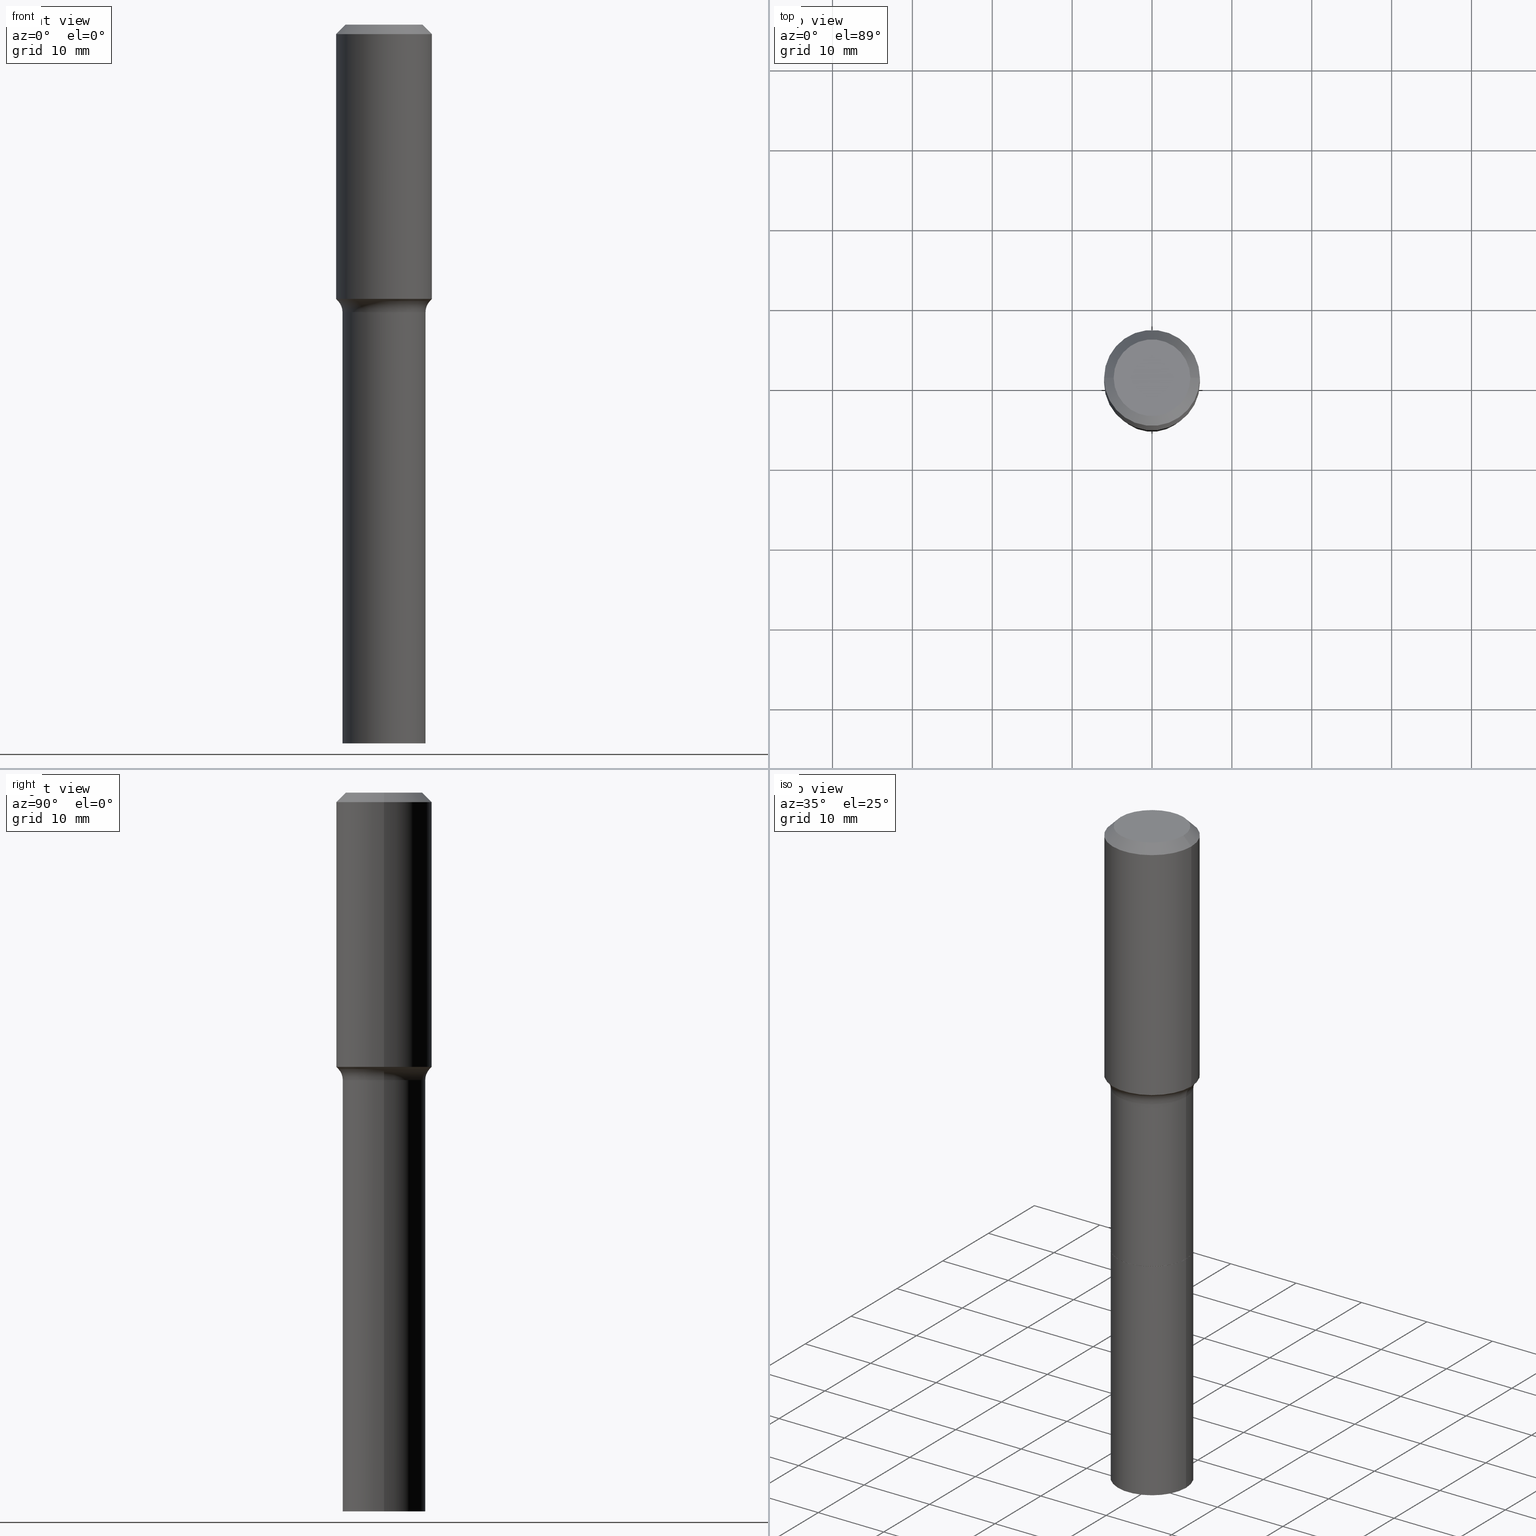
[diagram: canonical four-view strip — front | top / right | iso, engineering-drawing reading convention]
A machine part, canonical four-view strip (front | top / right | iso — engineering-drawing reading convention). The complete STEP part file that produces these views, byte-faithful:
ISO-10303-21;
HEADER;
FILE_DESCRIPTION (( 'STEP AP203' ),
    '1' );
FILE_NAME ('67781.STEP',
    '2025-04-01T15:30:32',
    ( '' ),
    ( '' ),
    'SwSTEP 2.0',
    'SolidWorks 2024',
    '' );
FILE_SCHEMA (( 'CONFIG_CONTROL_DESIGN' ));
ENDSEC;

DATA;
#1 = CARTESIAN_POINT ( 'NONE',  ( 5.622866426061484699E-29, -8.027963042402044222E-15, -2.299300000000000122 ) ) ;
#2 = CARTESIAN_POINT ( 'NONE',  ( 0.2046999999999999653, -1.429412460122378595E-15, 9.981533860054279593E-30 ) ) ;
#3 = EDGE_CURVE ( 'NONE', #278, #337, #229, .T. ) ;
#4 = VECTOR ( 'NONE', #356, 39.37007874015748143 ) ;
#5 = DIRECTION ( 'NONE',  ( -2.445468806185136597E-29, 3.491481338843145583E-15, 1.000000000000000000 ) ) ;
#6 = DIRECTION ( 'NONE',  ( -2.445468806185136597E-29, 3.491481338843145583E-15, 1.000000000000000000 ) ) ;
#7 = ORIENTED_EDGE ( 'NONE', *, *, #516, .F. ) ;
#8 = DIRECTION ( 'NONE',  ( -2.445468806185136597E-29, 3.491481338843145583E-15, 1.000000000000000000 ) ) ;
#9 = CARTESIAN_POINT ( 'NONE',  ( 3.306292283346049435E-29, -4.720509122368206214E-15, -1.352007547585026614 ) ) ;
#10 = CIRCLE ( 'NONE', #416, 0.2362000000000001598 ) ;
#11 = PRODUCT_DEFINITION_SHAPE ( 'NONE', 'NONE',  #244 ) ;
#12 = EDGE_LOOP ( 'NONE', ( #375, #518, #445, #177 ) ) ;
#13 = FACE_OUTER_BOUND ( 'NONE', #12, .T. ) ;
#14 = ORIENTED_EDGE ( 'NONE', *, *, #283, .F. ) ;
#15 = DIRECTION ( 'NONE',  ( 1.000000000000000000, -6.982962677686263555E-15, 0.000000000000000000 ) ) ;
#16 = ADVANCED_FACE ( 'NONE', ( #507 ), #146, .T. ) ;
#17 = CARTESIAN_POINT ( 'NONE',  ( 0.2362000000000000766, -1.649375784469496722E-15, 1.151752954443000368E-29 ) ) ;
#18 = CONICAL_SURFACE ( 'NONE', #405, 0.2361999999999999933, 0.7853981633974452814 ) ;
#19 = CONICAL_SURFACE ( 'NONE', #167, 0.2041999999999999926, 0.7853981633975849475 ) ;
#20 = DATE_TIME_ROLE ( 'creation_date' ) ;
#21 = CARTESIAN_POINT ( 'NONE',  ( -0.2041999999999999926, -6.577034775979920090E-15, -2.299300000000000122 ) ) ;
#22 = LOCAL_TIME ( 11, 30, 32.00000000000000000, #251 ) ;
#23 = DATE_AND_TIME ( #303, #195 ) ;
#24 = ORIENTED_EDGE ( 'NONE', *, *, #390, .T. ) ;
#25 = DIRECTION ( 'NONE',  ( 1.000000000000000000, 0.000000000000000000, 0.000000000000000000 ) ) ;
#26 = CYLINDRICAL_SURFACE ( 'NONE', #331, 0.2047000000000001041 ) ;
#27 = VERTEX_POINT ( 'NONE', #510 ) ;
#28 = ADVANCED_FACE ( 'NONE', ( #415 ), #301, .F. ) ;
#29 =( NAMED_UNIT ( * ) SI_UNIT ( $, .STERADIAN. ) SOLID_ANGLE_UNIT ( ) );
#30 = CARTESIAN_POINT ( 'NONE',  ( 0.2362000000000001598, -6.369884906837703528E-15, -1.352007547585026614 ) ) ;
#31 = VERTEX_POINT ( 'NONE', #101 ) ;
#32 = DIRECTION ( 'NONE',  ( 1.000000000000000000, -6.982962677686265922E-15, 0.000000000000000000 ) ) ;
#33 = DIRECTION ( 'NONE',  ( -2.445468806185136597E-29, 3.491481338843145583E-15, 1.000000000000000000 ) ) ;
#34 = APPLICATION_CONTEXT ( 'configuration controlled 3d designs of mechanical parts and assemblies' ) ;
#35 = DIRECTION ( 'NONE',  ( -1.000000000000000000, 7.105427357601001859E-15, 0.000000000000000000 ) ) ;
#36 = AXIS2_PLACEMENT_3D ( 'NONE', #220, #504, #171 ) ;
#37 = CARTESIAN_POINT ( 'NONE',  ( 0.2361999999999999933, -1.785387205520586782E-15, -0.04724000000000028870 ) ) ;
#38 = LINE ( 'NONE', #21, #470 ) ;
#39 = PLANE ( 'NONE',  #458 ) ;
#40 = CARTESIAN_POINT ( 'NONE',  ( 1.155239464041865682E-30, -1.649375784469512105E-16, -0.04724000000000028870 ) ) ;
#41 = EDGE_CURVE ( 'NONE', #335, #318, #514, .T. ) ;
#42 = CARTESIAN_POINT ( 'NONE',  ( -0.2261917038704663319, -3.150793017016406489E-15, -1.362740131195000037 ) ) ;
#43 = AXIS2_PLACEMENT_3D ( 'NONE', #402, #410, #49 ) ;
#44 = VECTOR ( 'NONE', #165, 39.37007874015748143 ) ;
#45 = FACE_OUTER_BOUND ( 'NONE', #245, .T. ) ;
#46 = EDGE_LOOP ( 'NONE', ( #170, #465, #281, #340 ) ) ;
#47 = FACE_OUTER_BOUND ( 'NONE', #175, .T. ) ;
#48 = DIRECTION ( 'NONE',  ( -2.445468806185136597E-29, 3.491481338843145583E-15, 1.000000000000000000 ) ) ;
#49 = DIRECTION ( 'NONE',  ( 1.000000000000000000, -6.982962677686263555E-15, 0.000000000000000000 ) ) ;
#50 = DIRECTION ( 'NONE',  ( -2.445468806185136597E-29, 3.491481338843145583E-15, 1.000000000000000000 ) ) ;
#51 = DESIGN_CONTEXT ( 'detailed design', #304, 'design' ) ;
#52 = AXIS2_PLACEMENT_3D ( 'NONE', #168, #142, #103 ) ;
#53 = SECURITY_CLASSIFICATION_LEVEL ( 'unclassified' ) ;
#54 = CARTESIAN_POINT ( 'NONE',  ( 0.2047000000000000486, -9.455629761855001117E-15, -2.298799999999999955 ) ) ;
#55 = ORIENTED_EDGE ( 'NONE', *, *, #491, .T. ) ;
#56 = CARTESIAN_POINT ( 'NONE',  ( 0.2047000000000002151, -1.380077828804529626E-14, -3.543299999999999894 ) ) ;
#57 = CIRCLE ( 'NONE', #225, 0.2046999999999999931 ) ;
#58 = EDGE_LOOP ( 'NONE', ( #297, #411, #97, #113 ) ) ;
#59 = AXIS2_PLACEMENT_3D ( 'NONE', #40, #270, #76 ) ;
#60 = DIRECTION ( 'NONE',  ( 0.000000000000000000, 0.000000000000000000, 1.000000000000000000 ) ) ;
#61 = FACE_OUTER_BOUND ( 'NONE', #106, .T. ) ;
#62 = CC_DESIGN_SECURITY_CLASSIFICATION ( #112, ( #330 ) ) ;
#63 = ADVANCED_FACE ( 'NONE', ( #420 ), #235, .F. ) ;
#64 = ORIENTED_EDGE ( 'NONE', *, *, #94, .F. ) ;
#65 = DIRECTION ( 'NONE',  ( 7.105427357601001859E-15, 1.000000000000000000, -3.491481338843145583E-15 ) ) ;
#66 = FACE_OUTER_BOUND ( 'NONE', #424, .T. ) ;
#67 = ORIENTED_EDGE ( 'NONE', *, *, #176, .F. ) ;
#68 = ORIENTED_EDGE ( 'NONE', *, *, #41, .F. ) ;
#69 =( LENGTH_UNIT ( ) NAMED_UNIT ( * ) SI_UNIT ( $, .METRE. ) );
#70 = DIRECTION ( 'NONE',  ( 1.000000000000000000, -6.982962677686263555E-15, 0.000000000000000000 ) ) ;
#71 = AXIS2_PLACEMENT_3D ( 'NONE', #122, #5, #236 ) ;
#72 = APPLICATION_PROTOCOL_DEFINITION ( 'international standard', 'config_control_design', 1994, #304 ) ;
#73 = CLOSED_SHELL ( 'NONE', ( #199, #433, #464, #16, #104, #441, #486, #63, #276, #148, #110, #240, #28, #194 ) ) ;
#74 = CC_DESIGN_DATE_AND_TIME_ASSIGNMENT ( #412, #197, ( #112 ) ) ;
#75 = CARTESIAN_POINT ( 'NONE',  ( -9.427742298522546243E-47, 1.346031739168365344E-32, 3.855188123715862256E-18 ) ) ;
#76 = DIRECTION ( 'NONE',  ( -1.000000000000000000, 6.982962677686266711E-15, 0.000000000000000000 ) ) ;
#77 = AXIS2_PLACEMENT_3D ( 'NONE', #508, #60, #25 ) ;
#78 = TOROIDAL_SURFACE ( 'NONE', #361, 0.2846999999999998976, 0.08000000000000007105 ) ;
#79 = DIRECTION ( 'NONE',  ( 1.000000000000000000, -6.982962677686266711E-15, 4.876185090822587894E-29 ) ) ;
#80 = CARTESIAN_POINT ( 'NONE',  ( 0.2361999999999999933, -1.814313362916447440E-15, -0.04724000000000028870 ) ) ;
#81 = LINE ( 'NONE', #183, #369 ) ;
#82 = ORIENTED_EDGE ( 'NONE', *, *, #158, .T. ) ;
#83 = DIRECTION ( 'NONE',  ( -2.445468806185136877E-29, 3.491481338843145188E-15, 1.000000000000000000 ) ) ;
#84 = FACE_OUTER_BOUND ( 'NONE', #414, .T. ) ;
#85 = CARTESIAN_POINT ( 'NONE',  ( 0.2846999999999998976, -6.936525975879669704E-15, -1.417300000000000004 ) ) ;
#86 = CIRCLE ( 'NONE', #120, 0.08000000000000002942 ) ;
#87 = CIRCLE ( 'NONE', #444, 0.2261917038704663319 ) ;
#88 = CARTESIAN_POINT ( 'NONE',  ( -0.2362000000000001598, -3.042207180502848242E-15, -1.352007547585026614 ) ) ;
#89 = CARTESIAN_POINT ( 'NONE',  ( 5.622866426061484699E-29, -8.027963042402044222E-15, -2.299300000000000122 ) ) ;
#90 = CARTESIAN_POINT ( 'NONE',  ( 8.665029620955794069E-29, -1.237136582792291707E-14, -3.543299999999999894 ) ) ;
#91 = PERSON_AND_ORGANIZATION_ROLE ( 'creator' ) ;
#92 = DIRECTION ( 'NONE',  ( -6.982962677686266711E-15, -1.000000000000000000, 3.491481338843145583E-15 ) ) ;
#93 = APPROVAL_PERSON_ORGANIZATION ( #512, #212, #469 ) ;
#94 = EDGE_CURVE ( 'NONE', #27, #217, #102, .T. ) ;
#95 = DIRECTION ( 'NONE',  ( -2.445468806185136597E-29, 3.491481338843145583E-15, 1.000000000000000000 ) ) ;
#96 = PERSON_AND_ORGANIZATION ( #474, #495 ) ;
#97 = ORIENTED_EDGE ( 'NONE', *, *, #311, .T. ) ;
#98 = EDGE_CURVE ( 'NONE', #357, #179, #81, .T. ) ;
#99 = LOCAL_TIME ( 11, 30, 32.00000000000000000, #455 ) ;
#100 = ORIENTED_EDGE ( 'NONE', *, *, #333, .F. ) ;
#101 = CARTESIAN_POINT ( 'NONE',  ( -0.2041999999999999926, -6.574385548805808888E-15, -2.299300000000000122 ) ) ;
#102 = CIRCLE ( 'NONE', #489, 0.08000000000000002942 ) ;
#103 = DIRECTION ( 'NONE',  ( 1.000000000000000000, -6.982962677686266711E-15, 4.876176775795936353E-29 ) ) ;
#104 = ADVANCED_FACE ( 'NONE', ( #84 ), #78, .F. ) ;
#105 = ORIENTED_EDGE ( 'NONE', *, *, #358, .T. ) ;
#106 = EDGE_LOOP ( 'NONE', ( #377, #206, #24, #503 ) ) ;
#107 = APPLICATION_PROTOCOL_DEFINITION ( 'international standard', 'config_control_design', 1994, #34 ) ;
#108 = DIRECTION ( 'NONE',  ( 1.000000000000000000, -6.982962677686266711E-15, 0.000000000000000000 ) ) ;
#109 = ORIENTED_EDGE ( 'NONE', *, *, #98, .T. ) ;
#110 = ADVANCED_FACE ( 'NONE', ( #310 ), #284, .T. ) ;
#111 = APPROVAL_PERSON_ORGANIZATION ( #242, #401, #406 ) ;
#112 = SECURITY_CLASSIFICATION ( '', '', #53 ) ;
#113 = ORIENTED_EDGE ( 'NONE', *, *, #484, .F. ) ;
#114 = UNCERTAINTY_MEASURE_WITH_UNIT (LENGTH_MEASURE( 1.000000000000000082E-05 ), #222, 'distance_accuracy_value', 'NONE');
#115 = DIRECTION ( 'NONE',  ( -2.445468806185136877E-29, 3.491481338843145188E-15, 1.000000000000000000 ) ) ;
#116 = DIRECTION ( 'NONE',  ( 1.000000000000000000, -6.982962677686267499E-15, 4.883557194083114022E-29 ) ) ;
#117 = EDGE_CURVE ( 'NONE', #335, #370, #438, .T. ) ;
#118 = DIRECTION ( 'NONE',  ( 1.000000000000000000, -6.982962677686270655E-15, 0.000000000000000000 ) ) ;
#119 = DIRECTION ( 'NONE',  ( 1.000000000000000000, -6.982962677686266711E-15, 4.876176775795935793E-29 ) ) ;
#120 = AXIS2_PLACEMENT_3D ( 'NONE', #85, #92, #446 ) ;
#121 = CC_DESIGN_PERSON_AND_ORGANIZATION_ASSIGNMENT ( #447, #91, ( #330 ) ) ;
#122 = CARTESIAN_POINT ( 'NONE',  ( -9.427742298522546243E-47, 1.346031739168365344E-32, 3.855188123715862256E-18 ) ) ;
#123 = DIRECTION ( 'NONE',  ( 0.7071067811866441621, -2.468850131083269169E-15, 0.7071067811864508723 ) ) ;
#124 = CARTESIAN_POINT ( 'NONE',  ( 5.622866426061484699E-29, -8.027963042402044222E-15, -2.299300000000000122 ) ) ;
#125 = VERTEX_POINT ( 'NONE', #271 ) ;
#126 = CIRCLE ( 'NONE', #360, 0.2046999999999999098 ) ;
#127 = CONICAL_SURFACE ( 'NONE', #471, 0.2041999999999999926, 0.7853981633975849475 ) ;
#128 = APPROVAL_ROLE ( '' ) ;
#129 = EDGE_LOOP ( 'NONE', ( #456, #153 ) ) ;
#130 = DIRECTION ( 'NONE',  ( 1.000000000000000000, -6.982962677686265922E-15, 0.000000000000000000 ) ) ;
#131 = FACE_OUTER_BOUND ( 'NONE', #511, .T. ) ;
#132 = CC_DESIGN_PERSON_AND_ORGANIZATION_ASSIGNMENT ( #164, #249, ( #112 ) ) ;
#133 = AXIS2_PLACEMENT_3D ( 'NONE', #207, #493, #130 ) ;
#134 = DIRECTION ( 'NONE',  ( -2.445468806185136597E-29, 3.491481338843145583E-15, 1.000000000000000000 ) ) ;
#135 = AXIS2_PLACEMENT_3D ( 'NONE', #371, #50, #70 ) ;
#136 = CARTESIAN_POINT ( 'NONE',  ( -0.2046999999999999931, -8.745183455061555616E-15, -2.299300000000000122 ) ) ;
#137 = DIRECTION ( 'NONE',  ( -2.445468806185136597E-29, 3.491481338843145583E-15, 1.000000000000000000 ) ) ;
#138 = ORIENTED_EDGE ( 'NONE', *, *, #315, .T. ) ;
#139 = CARTESIAN_POINT ( 'NONE',  ( -0.2362000000000000766, 1.678301941865357183E-15, -1.161852468318209177E-29 ) ) ;
#140 = VERTEX_POINT ( 'NONE', #440 ) ;
#141 = ORIENTED_EDGE ( 'NONE', *, *, #408, .T. ) ;
#142 = DIRECTION ( 'NONE',  ( -2.445468806185136597E-29, 3.491481338843145583E-15, 1.000000000000000000 ) ) ;
#143 = LINE ( 'NONE', #139, #145 ) ;
#144 = EDGE_CURVE ( 'NONE', #370, #217, #387, .T. ) ;
#145 = VECTOR ( 'NONE', #172, 39.37007874015748143 ) ;
#146 = CONICAL_SURFACE ( 'NONE', #226, 0.2261917038704663319, 0.7504915783575480948 ) ;
#147 = DIRECTION ( 'NONE',  ( -2.445468806185136597E-29, 3.491481338843145583E-15, 1.000000000000000000 ) ) ;
#148 = ADVANCED_FACE ( 'NONE', ( #152 ), #481, .T. ) ;
#149 = DIRECTION ( 'NONE',  ( -2.445468806185136597E-29, 3.491481338843145583E-15, 1.000000000000000000 ) ) ;
#150 = CYLINDRICAL_SURFACE ( 'NONE', #368, 0.2362000000000000766 ) ;
#151 = CARTESIAN_POINT ( 'NONE',  ( 5.622866426061484699E-29, -8.027963042402044222E-15, -2.299300000000000122 ) ) ;
#152 = FACE_OUTER_BOUND ( 'NONE', #259, .T. ) ;
#153 = ORIENTED_EDGE ( 'NONE', *, *, #364, .F. ) ;
#154 = FACE_OUTER_BOUND ( 'NONE', #362, .T. ) ;
#155 = CC_DESIGN_APPROVAL ( #212, ( #244 ) ) ;
#156 = DIRECTION ( 'NONE',  ( 1.000000000000000000, -6.982962677686266711E-15, 4.876176775795935793E-29 ) ) ;
#157 = FACE_OUTER_BOUND ( 'NONE', #263, .T. ) ;
#158 = EDGE_CURVE ( 'NONE', #461, #467, #160, .T. ) ;
#159 = AXIS2_PLACEMENT_3D ( 'NONE', #261, #480, #394 ) ;
#160 = CIRCLE ( 'NONE', #459, 0.2361999999999999933 ) ;
#161 = DATE_AND_TIME ( #497, #397 ) ;
#162 = ORIENTED_EDGE ( 'NONE', *, *, #117, .T. ) ;
#163 = DIRECTION ( 'NONE',  ( -2.445468806185136597E-29, 3.491481338843145583E-15, 1.000000000000000000 ) ) ;
#164 = PERSON_AND_ORGANIZATION ( #474, #495 ) ;
#165 = DIRECTION ( 'NONE',  ( -2.445468806185136877E-29, 3.491481338843145188E-15, 1.000000000000000000 ) ) ;
#166 = CIRCLE ( 'NONE', #43, 0.2041999999999999926 ) ;
#167 = AXIS2_PLACEMENT_3D ( 'NONE', #151, #48, #386 ) ;
#168 = CARTESIAN_POINT ( 'NONE',  ( 0.000000000000000000, 0.000000000000000000, 0.000000000000000000 ) ) ;
#169 = ADVANCED_FACE ( 'NONE', ( #131 ), #418, .T. ) ;
#170 = ORIENTED_EDGE ( 'NONE', *, *, #41, .T. ) ;
#171 = DIRECTION ( 'NONE',  ( 1.000000000000000000, -6.982962677686265922E-15, 4.876176775795935793E-29 ) ) ;
#172 = DIRECTION ( 'NONE',  ( -2.445468806185136877E-29, 3.491481338843145188E-15, 1.000000000000000000 ) ) ;
#173 = DATE_AND_TIME ( #373, #99 ) ;
#174 = DATE_AND_TIME ( #268, #380 ) ;
#175 = EDGE_LOOP ( 'NONE', ( #498, #141, #68, #403 ) ) ;
#176 = EDGE_CURVE ( 'NONE', #27, #357, #87, .T. ) ;
#177 = ORIENTED_EDGE ( 'NONE', *, *, #506, .F. ) ;
#178 = AXIS2_PLACEMENT_3D ( 'NONE', #502, #256, #500 ) ;
#179 = VERTEX_POINT ( 'NONE', #30 ) ;
#180 = ORIENTED_EDGE ( 'NONE', *, *, #231, .T. ) ;
#181 = EDGE_CURVE ( 'NONE', #179, #467, #366, .T. ) ;
#182 = ORIENTED_EDGE ( 'NONE', *, *, #94, .T. ) ;
#183 = CARTESIAN_POINT ( 'NONE',  ( 0.2261917038704663319, -6.337469963889732725E-15, -1.362740131195000037 ) ) ;
#184 = ADVANCED_FACE ( 'NONE', ( #61 ), #26, .T. ) ;
#185 = DIRECTION ( 'NONE',  ( 1.000000000000000000, -6.982962677686266711E-15, 4.876176775795936353E-29 ) ) ;
#186 = CIRCLE ( 'NONE', #159, 0.2047000000000000486 ) ;
#187 = AXIS2_PLACEMENT_3D ( 'NONE', #431, #314, #275 ) ;
#188 = CARTESIAN_POINT ( 'NONE',  ( 3.332538481774012867E-29, -4.757981737760002382E-15, -1.362740131195000037 ) ) ;
#189 = DIRECTION ( 'NONE',  ( 2.438088387897960049E-29, -3.491481338843145188E-15, -1.000000000000000000 ) ) ;
#190 = DIRECTION ( 'NONE',  ( -2.445468806185136597E-29, 3.491481338843145583E-15, 1.000000000000000000 ) ) ;
#191 = CARTESIAN_POINT ( 'NONE',  ( 0.2041999999999999926, -9.453884021185578824E-15, -2.299300000000000122 ) ) ;
#192 = DIRECTION ( 'NONE',  ( -0.7071067811866441621, 7.493145998870704414E-15, 0.7071067811864508723 ) ) ;
#193 = AXIS2_PLACEMENT_3D ( 'NONE', #75, #476, #79 ) ;
#194 = ADVANCED_FACE ( 'NONE', ( #238 ), #127, .T. ) ;
#195 = LOCAL_TIME ( 11, 30, 32.00000000000000000, #286 ) ;
#196 = CC_DESIGN_PERSON_AND_ORGANIZATION_ASSIGNMENT ( #339, #460, ( #244 ) ) ;
#197 = DATE_TIME_ROLE ( 'classification_date' ) ;
#198 = ORIENTED_EDGE ( 'NONE', *, *, #176, .T. ) ;
#199 = ADVANCED_FACE ( 'NONE', ( #47 ), #19, .T. ) ;
#200 = APPROVAL_STATUS ( 'not_yet_approved' ) ;
#201 = AXIS2_PLACEMENT_3D ( 'NONE', #90, #134, #15 ) ;
#202 = APPROVAL ( #490, 'UNSPECIFIED' ) ;
#203 = CARTESIAN_POINT ( 'NONE',  ( 1.155239464041865682E-30, -1.649375784469512105E-16, -0.04724000000000028870 ) ) ;
#204 = ORIENTED_EDGE ( 'NONE', *, *, #313, .F. ) ;
#205 = APPROVAL_DATE_TIME ( #174, #212 ) ;
#206 = ORIENTED_EDGE ( 'NONE', *, *, #3, .T. ) ;
#207 = CARTESIAN_POINT ( 'NONE',  ( 3.332538481774012867E-29, -4.757981737760002382E-15, -1.362740131195000037 ) ) ;
#208 = EDGE_LOOP ( 'NONE', ( #64, #248, #299, #254 ) ) ;
#209 = CIRCLE ( 'NONE', #344, 0.2046999999999999931 ) ;
#210 = CIRCLE ( 'NONE', #187, 0.2361999999999999933 ) ;
#211 = EDGE_LOOP ( 'NONE', ( #378, #325, #329, #342 ) ) ;
#212 = APPROVAL ( #306, 'UNSPECIFIED' ) ;
#213 = EDGE_LOOP ( 'NONE', ( #14, #421, #216, #82 ) ) ;
#214 = LENGTH_MEASURE_WITH_UNIT ( LENGTH_MEASURE( 0.02539999999999999897 ), #69 );
#215 = MANIFOLD_SOLID_BREP ( 'Body-Move/Copy2[2]', #73 ) ;
#216 = ORIENTED_EDGE ( 'NONE', *, *, #506, .T. ) ;
#217 = VERTEX_POINT ( 'NONE', #224 ) ;
#218 = CYLINDRICAL_SURFACE ( 'NONE', #52, 0.2046999999999999653 ) ;
#219 = CONICAL_SURFACE ( 'NONE', #434, 0.2261917038704663319, 0.7504915783575480948 ) ;
#220 = CARTESIAN_POINT ( 'NONE',  ( 5.622866426061484699E-29, -8.027963042402044222E-15, -2.299300000000000122 ) ) ;
#221 = EDGE_CURVE ( 'NONE', #467, #461, #210, .T. ) ;
#222 =( CONVERSION_BASED_UNIT ( 'INCH', #214 ) LENGTH_UNIT ( ) NAMED_UNIT ( #499 ) );
#223 = CC_DESIGN_PERSON_AND_ORGANIZATION_ASSIGNMENT ( #96, #294, ( #330 ) ) ;
#224 = CARTESIAN_POINT ( 'NONE',  ( -0.2046999999999999098, -5.032865921536581155E-15, -1.417300000000000004 ) ) ;
#225 = AXIS2_PLACEMENT_3D ( 'NONE', #1, #149, #118 ) ;
#226 = AXIS2_PLACEMENT_3D ( 'NONE', #252, #462, #32 ) ;
#227 = FACE_OUTER_BOUND ( 'NONE', #289, .T. ) ;
#228 = CARTESIAN_POINT ( 'NONE',  ( 3.465962939006193759E-29, -4.948476501542390442E-15, -1.417300000000000004 ) ) ;
#229 = CIRCLE ( 'NONE', #135, 0.2047000000000002151 ) ;
#230 = CARTESIAN_POINT ( 'NONE',  ( 0.000000000000000000, 0.000000000000000000, 0.000000000000000000 ) ) ;
#231 = EDGE_CURVE ( 'NONE', #237, #125, #479, .T. ) ;
#232 = CARTESIAN_POINT ( 'NONE',  ( -0.2047000000000002151, -8.745183455061554039E-15, -3.543299999999999894 ) ) ;
#233 = AXIS2_PLACEMENT_3D ( 'NONE', #384, #437, #185 ) ;
#234 = EDGE_CURVE ( 'NONE', #278, #492, #273, .T. ) ;
#235 = TOROIDAL_SURFACE ( 'NONE', #322, 0.2846999999999998976, 0.08000000000000007105 ) ;
#236 = DIRECTION ( 'NONE',  ( 1.000000000000000000, -6.982962677686266711E-15, 4.876185090822587894E-29 ) ) ;
#237 = VERTEX_POINT ( 'NONE', #483 ) ;
#238 = FACE_OUTER_BOUND ( 'NONE', #58, .T. ) ;
#239 = ORIENTED_EDGE ( 'NONE', *, *, #98, .F. ) ;
#240 = ADVANCED_FACE ( 'NONE', ( #227 ), #39, .F. ) ;
#241 = DIRECTION ( 'NONE',  ( 1.000000000000000000, -6.982962677686270655E-15, 0.000000000000000000 ) ) ;
#242 = PERSON_AND_ORGANIZATION ( #474, #495 ) ;
#243 = DIRECTION ( 'NONE',  ( 1.000000000000000000, -6.982962677686267499E-15, 4.883557194083114022E-29 ) ) ;
#244 = PRODUCT_DEFINITION ( 'UNKNOWN', '', #330, #51 ) ;
#245 = EDGE_LOOP ( 'NONE', ( #365, #198, #109, #457 ) ) ;
#246 = CIRCLE ( 'NONE', #354, 0.2041999999999999926 ) ;
#247 = DIRECTION ( 'NONE',  ( 1.000000000000000000, -6.982962677686265922E-15, 0.000000000000000000 ) ) ;
#248 = ORIENTED_EDGE ( 'NONE', *, *, #383, .F. ) ;
#249 = PERSON_AND_ORGANIZATION_ROLE ( 'classification_officer' ) ;
#250 = DIRECTION ( 'NONE',  ( -2.445468806185136597E-29, 3.491481338843145583E-15, 1.000000000000000000 ) ) ;
#251 = COORDINATED_UNIVERSAL_TIME_OFFSET ( 5, 0, .BEHIND. ) ;
#252 = CARTESIAN_POINT ( 'NONE',  ( 3.332538481774012867E-29, -4.757981737760002382E-15, -1.362740131195000037 ) ) ;
#253 = AXIS2_PLACEMENT_3D ( 'NONE', #230, #395, #156 ) ;
#254 = ORIENTED_EDGE ( 'NONE', *, *, #144, .T. ) ;
#255 = CARTESIAN_POINT ( 'NONE',  ( 3.465962939006193759E-29, -4.948476501542390442E-15, -1.417300000000000004 ) ) ;
#256 = DIRECTION ( 'NONE',  ( -2.445468806185136597E-29, 3.491481338843145583E-15, 1.000000000000000000 ) ) ;
#257 = EDGE_CURVE ( 'NONE', #179, #296, #10, .T. ) ;
#258 = ORIENTED_EDGE ( 'NONE', *, *, #257, .F. ) ;
#259 = EDGE_LOOP ( 'NONE', ( #367, #55, #374, #478 ) ) ;
#260 = PRODUCT_RELATED_PRODUCT_CATEGORY ( 'detail', '', ( #295 ) ) ;
#261 = CARTESIAN_POINT ( 'NONE',  ( 5.621643691658391897E-29, -8.026217301732623508E-15, -2.298799999999999955 ) ) ;
#262 = ORIENTED_EDGE ( 'NONE', *, *, #333, .T. ) ;
#263 = EDGE_LOOP ( 'NONE', ( #338, #288 ) ) ;
#264 = PERSON_AND_ORGANIZATION ( #474, #495 ) ;
#265 = CIRCLE ( 'NONE', #193, 0.1889600000000000168 ) ;
#266 = DIRECTION ( 'NONE',  ( 2.445468806185136597E-29, -3.491481338843145583E-15, -1.000000000000000000 ) ) ;
#267 = SHAPE_DEFINITION_REPRESENTATION ( #11, #388 ) ;
#268 = CALENDAR_DATE ( 2025, 1, 4 ) ;
#269 = CC_DESIGN_APPROVAL ( #401, ( #330 ) ) ;
#270 = DIRECTION ( 'NONE',  ( 2.445468806185136597E-29, -3.491481338843145583E-15, -1.000000000000000000 ) ) ;
#271 = CARTESIAN_POINT ( 'NONE',  ( 0.1889600000000000168, -1.540873453589747738E-15, 3.855188123725863225E-18 ) ) ;
#272 = AXIS2_PLACEMENT_3D ( 'NONE', #398, #355, #363 ) ;
#273 = LINE ( 'NONE', #439, #385 ) ;
#274 = CARTESIAN_POINT ( 'NONE',  ( 5.622866426061484699E-29, -8.027963042402044222E-15, -2.299300000000000122 ) ) ;
#275 = DIRECTION ( 'NONE',  ( 1.000000000000000000, -6.982962677686266711E-15, 0.000000000000000000 ) ) ;
#276 = ADVANCED_FACE ( 'NONE', ( #45 ), #219, .T. ) ;
#277 = PLANE ( 'NONE',  #272 ) ;
#278 = VERTEX_POINT ( 'NONE', #232 ) ;
#279 = DIRECTION ( 'NONE',  ( -2.445468806185136597E-29, 3.491481338843145583E-15, 1.000000000000000000 ) ) ;
#280 = DIRECTION ( 'NONE',  ( -2.445468806185136597E-29, 3.491481338843145583E-15, 1.000000000000000000 ) ) ;
#281 = ORIENTED_EDGE ( 'NONE', *, *, #144, .F. ) ;
#282 = CIRCLE ( 'NONE', #178, 0.2362000000000001598 ) ;
#283 = EDGE_CURVE ( 'NONE', #125, #467, #396, .T. ) ;
#284 = CONICAL_SURFACE ( 'NONE', #59, 0.2361999999999999933, 0.7853981633974452814 ) ;
#285 = ORIENTED_EDGE ( 'NONE', *, *, #383, .T. ) ;
#286 = COORDINATED_UNIVERSAL_TIME_OFFSET ( 5, 0, .BEHIND. ) ;
#287 = CC_DESIGN_DATE_AND_TIME_ASSIGNMENT ( #173, #20, ( #244 ) ) ;
#288 = ORIENTED_EDGE ( 'NONE', *, *, #3, .F. ) ;
#289 = EDGE_LOOP ( 'NONE', ( #180, #138 ) ) ;
#290 = VECTOR ( 'NONE', #123, 39.37007874015748143 ) ;
#291 = CARTESIAN_POINT ( 'NONE',  ( 5.622866426061484699E-29, -8.027963042402044222E-15, -2.299300000000000122 ) ) ;
#292 = ADVANCED_FACE ( 'NONE', ( #157 ), #442, .T. ) ;
#293 = ORIENTED_EDGE ( 'NONE', *, *, #423, .F. ) ;
#294 = PERSON_AND_ORGANIZATION_ROLE ( 'design_supplier' ) ;
#295 = PRODUCT ( '67781', '67781', '', ( #343 ) ) ;
#296 = VERTEX_POINT ( 'NONE', #88 ) ;
#297 = ORIENTED_EDGE ( 'NONE', *, *, #408, .F. ) ;
#298 = AXIS2_PLACEMENT_3D ( 'NONE', #381, #33, #501 ) ;
#299 = ORIENTED_EDGE ( 'NONE', *, *, #423, .T. ) ;
#300 = CC_DESIGN_PERSON_AND_ORGANIZATION_ASSIGNMENT ( #264, #425, ( #295 ) ) ;
#301 = PLANE ( 'NONE',  #36 ) ;
#302 = LINE ( 'NONE', #427, #496 ) ;
#303 = CALENDAR_DATE ( 2025, 1, 4 ) ;
#304 = APPLICATION_CONTEXT ( 'configuration controlled 3d designs of mechanical parts and assemblies' ) ;
#305 = CARTESIAN_POINT ( 'NONE',  ( -0.2846999999999998976, -2.925561332833385546E-15, -1.417300000000000004 ) ) ;
#306 = APPROVAL_STATUS ( 'not_yet_approved' ) ;
#307 = VECTOR ( 'NONE', #477, 39.37007874015748143 ) ;
#308 = EDGE_CURVE ( 'NONE', #492, #351, #57, .T. ) ;
#309 = CARTESIAN_POINT ( 'NONE',  ( -0.2046999999999999653, 1.454480980100924834E-15, -1.006906012975179189E-29 ) ) ;
#310 = FACE_OUTER_BOUND ( 'NONE', #213, .T. ) ;
#311 = EDGE_CURVE ( 'NONE', #140, #335, #312, .T. ) ;
#312 = LINE ( 'NONE', #191, #290 ) ;
#313 = EDGE_CURVE ( 'NONE', #318, #217, #485, .T. ) ;
#314 = DIRECTION ( 'NONE',  ( -2.445468806185136597E-29, 3.491481338843145583E-15, 1.000000000000000000 ) ) ;
#315 = EDGE_CURVE ( 'NONE', #125, #237, #265, .T. ) ;
#316 = CARTESIAN_POINT ( 'NONE',  ( 1.155239464041865682E-30, -1.649375784469512105E-16, -0.04724000000000028870 ) ) ;
#317 = DIRECTION ( 'NONE',  ( 1.000000000000000000, -6.982962677686268288E-15, 0.000000000000000000 ) ) ;
#318 = VERTEX_POINT ( 'NONE', #332 ) ;
#319 = EDGE_LOOP ( 'NONE', ( #285, #453, #258, #239 ) ) ;
#320 = PERSON_AND_ORGANIZATION ( #474, #495 ) ;
#321 =( GEOMETRIC_REPRESENTATION_CONTEXT ( 3 ) GLOBAL_UNCERTAINTY_ASSIGNED_CONTEXT ( ( #114 ) ) GLOBAL_UNIT_ASSIGNED_CONTEXT ( ( #222, #376, #29 ) ) REPRESENTATION_CONTEXT ( 'NONE', 'WORKASPACE' ) );
#322 = AXIS2_PLACEMENT_3D ( 'NONE', #255, #468, #243 ) ;
#323 = CARTESIAN_POINT ( 'NONE',  ( 0.2261917038704662208, -6.337469963889731936E-15, -1.362740131195000037 ) ) ;
#324 = APPROVAL_DATE_TIME ( #161, #401 ) ;
#325 = ORIENTED_EDGE ( 'NONE', *, *, #509, .T. ) ;
#326 = CARTESIAN_POINT ( 'NONE',  ( 0.2046999999999999098, -6.377888961664768052E-15, -1.417300000000000004 ) ) ;
#327 = CARTESIAN_POINT ( 'NONE',  ( 5.622866426061484699E-29, -8.027963042402044222E-15, -2.299300000000000122 ) ) ;
#328 = ORIENTED_EDGE ( 'NONE', *, *, #234, .T. ) ;
#329 = ORIENTED_EDGE ( 'NONE', *, *, #221, .F. ) ;
#330 = PRODUCT_DEFINITION_FORMATION_WITH_SPECIFIED_SOURCE ( 'ANY', '', #295, .NOT_KNOWN. ) ;
#331 = AXIS2_PLACEMENT_3D ( 'NONE', #274, #8, #487 ) ;
#332 = CARTESIAN_POINT ( 'NONE',  ( -0.2047000000000000763, -5.032865921536578788E-15, -2.298799999999999955 ) ) ;
#333 = EDGE_CURVE ( 'NONE', #351, #492, #209, .T. ) ;
#334 = EDGE_CURVE ( 'NONE', #140, #31, #246, .T. ) ;
#335 = VERTEX_POINT ( 'NONE', #54 ) ;
#336 = CARTESIAN_POINT ( 'NONE',  ( 3.465962939006193759E-29, -4.948476501542390442E-15, -1.417300000000000004 ) ) ;
#337 = VERTEX_POINT ( 'NONE', #56 ) ;
#338 = ORIENTED_EDGE ( 'NONE', *, *, #358, .F. ) ;
#339 = PERSON_AND_ORGANIZATION ( #474, #495 ) ;
#340 = ORIENTED_EDGE ( 'NONE', *, *, #117, .F. ) ;
#341 = FACE_OUTER_BOUND ( 'NONE', #46, .T. ) ;
#342 = ORIENTED_EDGE ( 'NONE', *, *, #181, .F. ) ;
#343 = MECHANICAL_CONTEXT ( 'NONE', #34, 'mechanical' ) ;
#344 = AXIS2_PLACEMENT_3D ( 'NONE', #89, #163, #241 ) ;
#345 = AXIS2_PLACEMENT_3D ( 'NONE', #228, #190, #350 ) ;
#346 = FACE_OUTER_BOUND ( 'NONE', #211, .T. ) ;
#347 = DIRECTION ( 'NONE',  ( -1.000000000000000000, 6.982962677686265922E-15, -4.876176775795935793E-29 ) ) ;
#348 = CARTESIAN_POINT ( 'NONE',  ( -0.2361999999999999933, -7.644214085422213814E-16, -0.04724000000000028870 ) ) ;
#349 = DIRECTION ( 'NONE',  ( -2.445468806185136877E-29, 3.491481338843145188E-15, 1.000000000000000000 ) ) ;
#350 = DIRECTION ( 'NONE',  ( 1.000000000000000000, -6.982962677686264344E-15, 0.000000000000000000 ) ) ;
#351 = VERTEX_POINT ( 'NONE', #404 ) ;
#352 = DIRECTION ( 'NONE',  ( -0.6819983600624884845, 7.399397606724248711E-15, 0.7313537016191797857 ) ) ;
#353 = CARTESIAN_POINT ( 'NONE',  ( -4.713871149261273121E-47, 6.730158695841826722E-33, 1.927594061857931128E-18 ) ) ;
#354 = AXIS2_PLACEMENT_3D ( 'NONE', #291, #95, #407 ) ;
#355 = DIRECTION ( 'NONE',  ( 2.438088387897960049E-29, -3.491481338843145188E-15, -1.000000000000000000 ) ) ;
#356 = DIRECTION ( 'NONE',  ( 0.7071067811865453523, -7.319954787623248157E-15, -0.7071067811865496822 ) ) ;
#357 = VERTEX_POINT ( 'NONE', #323 ) ;
#358 = EDGE_CURVE ( 'NONE', #337, #278, #443, .T. ) ;
#359 = CLOSED_SHELL ( 'NONE', ( #169, #292, #184, #430 ) ) ;
#360 = AXIS2_PLACEMENT_3D ( 'NONE', #336, #372, #417 ) ;
#361 = AXIS2_PLACEMENT_3D ( 'NONE', #517, #147, #116 ) ;
#362 = EDGE_LOOP ( 'NONE', ( #262, #454 ) ) ;
#363 = DIRECTION ( 'NONE',  ( -1.000000000000000000, 6.982962677686265922E-15, -4.876176775795935793E-29 ) ) ;
#364 = EDGE_CURVE ( 'NONE', #31, #140, #166, .T. ) ;
#365 = ORIENTED_EDGE ( 'NONE', *, *, #429, .F. ) ;
#366 = LINE ( 'NONE', #17, #44 ) ;
#367 = ORIENTED_EDGE ( 'NONE', *, *, #509, .F. ) ;
#368 = AXIS2_PLACEMENT_3D ( 'NONE', #515, #389, #119 ) ;
#369 = VECTOR ( 'NONE', #472, 39.37007874015748143 ) ;
#370 = VERTEX_POINT ( 'NONE', #326 ) ;
#371 = CARTESIAN_POINT ( 'NONE',  ( 8.665029620955794069E-29, -1.237136582792291707E-14, -3.543299999999999894 ) ) ;
#372 = DIRECTION ( 'NONE',  ( -2.445468806185136597E-29, 3.491481338843145583E-15, 1.000000000000000000 ) ) ;
#373 = CALENDAR_DATE ( 2025, 1, 4 ) ;
#374 = ORIENTED_EDGE ( 'NONE', *, *, #181, .T. ) ;
#375 = ORIENTED_EDGE ( 'NONE', *, *, #315, .F. ) ;
#376 =( NAMED_UNIT ( * ) PLANE_ANGLE_UNIT ( ) SI_UNIT ( $, .RADIAN. ) );
#377 = ORIENTED_EDGE ( 'NONE', *, *, #234, .F. ) ;
#378 = ORIENTED_EDGE ( 'NONE', *, *, #257, .T. ) ;
#379 = DIRECTION ( 'NONE',  ( -0.7071067811865453523, 2.468850131082234184E-15, -0.7071067811865496822 ) ) ;
#380 = LOCAL_TIME ( 11, 30, 32.00000000000000000, #413 ) ;
#381 = CARTESIAN_POINT ( 'NONE',  ( 5.621643691658391897E-29, -8.026217301732623508E-15, -2.298799999999999955 ) ) ;
#382 = APPROVAL_PERSON_ORGANIZATION ( #320, #202, #128 ) ;
#383 = EDGE_CURVE ( 'NONE', #357, #27, #513, .T. ) ;
#384 = CARTESIAN_POINT ( 'NONE',  ( 0.000000000000000000, 0.000000000000000000, 0.000000000000000000 ) ) ;
#385 = VECTOR ( 'NONE', #83, 39.37007874015748143 ) ;
#386 = DIRECTION ( 'NONE',  ( 1.000000000000000000, -6.982962677686263555E-15, 0.000000000000000000 ) ) ;
#387 = CIRCLE ( 'NONE', #345, 0.2046999999999999098 ) ;
#388 = ADVANCED_BREP_SHAPE_REPRESENTATION ( '67781', ( #391, #215, #77 ), #321 ) ;
#389 = DIRECTION ( 'NONE',  ( -2.445468806185136597E-29, 3.491481338843145583E-15, 1.000000000000000000 ) ) ;
#390 = EDGE_CURVE ( 'NONE', #337, #351, #302, .T. ) ;
#391 = MANIFOLD_SOLID_BREP ( 'Body-Move/Copy2[1]', #359 ) ;
#392 = LINE ( 'NONE', #42, #505 ) ;
#393 = DIRECTION ( 'NONE',  ( -1.000000000000000000, 6.982962677686265922E-15, -4.876176775795935793E-29 ) ) ;
#394 = DIRECTION ( 'NONE',  ( 1.000000000000000000, -6.982962677686264344E-15, 0.000000000000000000 ) ) ;
#395 = DIRECTION ( 'NONE',  ( -2.445468806185136597E-29, 3.491481338843145583E-15, 1.000000000000000000 ) ) ;
#396 = LINE ( 'NONE', #37, #4 ) ;
#397 = LOCAL_TIME ( 11, 30, 32.00000000000000000, #409 ) ;
#398 = CARTESIAN_POINT ( 'NONE',  ( 5.622866426061484699E-29, -8.027963042402044222E-15, -2.299300000000000122 ) ) ;
#399 = DIRECTION ( 'NONE',  ( 1.000000000000000000, -6.982962677686263555E-15, 0.000000000000000000 ) ) ;
#400 = DIRECTION ( 'NONE',  ( 2.438088387897960049E-29, -3.491481338843145188E-15, -1.000000000000000000 ) ) ;
#401 = APPROVAL ( #200, 'UNSPECIFIED' ) ;
#402 = CARTESIAN_POINT ( 'NONE',  ( 5.622866426061484699E-29, -8.027963042402044222E-15, -2.299300000000000122 ) ) ;
#403 = ORIENTED_EDGE ( 'NONE', *, *, #311, .F. ) ;
#404 = CARTESIAN_POINT ( 'NONE',  ( 0.2046999999999999931, -9.457375502524423409E-15, -2.299300000000000122 ) ) ;
#405 = AXIS2_PLACEMENT_3D ( 'NONE', #203, #266, #432 ) ;
#406 = APPROVAL_ROLE ( '' ) ;
#407 = DIRECTION ( 'NONE',  ( 1.000000000000000000, -6.982962677686263555E-15, 0.000000000000000000 ) ) ;
#408 = EDGE_CURVE ( 'NONE', #31, #318, #38, .T. ) ;
#409 = COORDINATED_UNIVERSAL_TIME_OFFSET ( 5, 0, .BEHIND. ) ;
#410 = DIRECTION ( 'NONE',  ( -2.445468806185136597E-29, 3.491481338843145583E-15, 1.000000000000000000 ) ) ;
#411 = ORIENTED_EDGE ( 'NONE', *, *, #364, .T. ) ;
#412 = DATE_AND_TIME ( #448, #22 ) ;
#413 = COORDINATED_UNIVERSAL_TIME_OFFSET ( 5, 0, .BEHIND. ) ;
#414 = EDGE_LOOP ( 'NONE', ( #67, #182, #450, #293 ) ) ;
#415 = FACE_OUTER_BOUND ( 'NONE', #129, .T. ) ;
#416 = AXIS2_PLACEMENT_3D ( 'NONE', #9, #6, #317 ) ;
#417 = DIRECTION ( 'NONE',  ( 1.000000000000000000, -6.982962677686264344E-15, 0.000000000000000000 ) ) ;
#418 = CYLINDRICAL_SURFACE ( 'NONE', #436, 0.2047000000000001041 ) ;
#419 = ORIENTED_EDGE ( 'NONE', *, *, #390, .F. ) ;
#420 = FACE_OUTER_BOUND ( 'NONE', #208, .T. ) ;
#421 = ORIENTED_EDGE ( 'NONE', *, *, #231, .F. ) ;
#422 = CARTESIAN_POINT ( 'NONE',  ( -0.2361999999999999933, 1.484438206022545019E-15, -0.04724000000000028870 ) ) ;
#423 = EDGE_CURVE ( 'NONE', #357, #370, #86, .T. ) ;
#424 = EDGE_LOOP ( 'NONE', ( #204, #482, #162, #7 ) ) ;
#425 = PERSON_AND_ORGANIZATION_ROLE ( 'design_owner' ) ;
#426 = VECTOR ( 'NONE', #379, 39.37007874015748143 ) ;
#427 = CARTESIAN_POINT ( 'NONE',  ( 0.2047000000000001041, -9.457375502524423409E-15, -2.299300000000000122 ) ) ;
#428 = CYLINDRICAL_SURFACE ( 'NONE', #233, 0.2046999999999999653 ) ;
#429 = EDGE_CURVE ( 'NONE', #27, #296, #392, .T. ) ;
#430 = ADVANCED_FACE ( 'NONE', ( #154 ), #277, .F. ) ;
#431 = CARTESIAN_POINT ( 'NONE',  ( 1.155239464041865682E-30, -1.649375784469512105E-16, -0.04724000000000028870 ) ) ;
#432 = DIRECTION ( 'NONE',  ( -1.000000000000000000, 6.982962677686266711E-15, 0.000000000000000000 ) ) ;
#433 = ADVANCED_FACE ( 'NONE', ( #13 ), #18, .T. ) ;
#434 = AXIS2_PLACEMENT_3D ( 'NONE', #188, #280, #475 ) ;
#435 = CARTESIAN_POINT ( 'NONE',  ( 8.665029620955794069E-29, -1.237136582792291707E-14, -3.543299999999999894 ) ) ;
#436 = AXIS2_PLACEMENT_3D ( 'NONE', #327, #452, #451 ) ;
#437 = DIRECTION ( 'NONE',  ( -2.445468806185136597E-29, 3.491481338843145583E-15, 1.000000000000000000 ) ) ;
#438 = LINE ( 'NONE', #2, #307 ) ;
#439 = CARTESIAN_POINT ( 'NONE',  ( -0.2047000000000001041, -6.573482062301118402E-15, -2.299300000000000122 ) ) ;
#440 = CARTESIAN_POINT ( 'NONE',  ( 0.2041999999999999926, -9.453884021185578824E-15, -2.299300000000000122 ) ) ;
#441 = ADVANCED_FACE ( 'NONE', ( #341 ), #428, .T. ) ;
#442 = PLANE ( 'NONE',  #449 ) ;
#443 = CIRCLE ( 'NONE', #201, 0.2047000000000002151 ) ;
#444 = AXIS2_PLACEMENT_3D ( 'NONE', #494, #250, #247 ) ;
#445 = ORIENTED_EDGE ( 'NONE', *, *, #221, .T. ) ;
#446 = DIRECTION ( 'NONE',  ( 1.000000000000000000, -6.982962677686269077E-15, 0.000000000000000000 ) ) ;
#447 = PERSON_AND_ORGANIZATION ( #474, #495 ) ;
#448 = CALENDAR_DATE ( 2025, 1, 4 ) ;
#449 = AXIS2_PLACEMENT_3D ( 'NONE', #435, #189, #347 ) ;
#450 = ORIENTED_EDGE ( 'NONE', *, *, #516, .T. ) ;
#451 = DIRECTION ( 'NONE',  ( 1.000000000000000000, -6.982962677686266711E-15, 0.000000000000000000 ) ) ;
#452 = DIRECTION ( 'NONE',  ( -2.445468806185136597E-29, 3.491481338843145583E-15, 1.000000000000000000 ) ) ;
#453 = ORIENTED_EDGE ( 'NONE', *, *, #429, .T. ) ;
#454 = ORIENTED_EDGE ( 'NONE', *, *, #308, .T. ) ;
#455 = COORDINATED_UNIVERSAL_TIME_OFFSET ( 5, 0, .BEHIND. ) ;
#456 = ORIENTED_EDGE ( 'NONE', *, *, #334, .F. ) ;
#457 = ORIENTED_EDGE ( 'NONE', *, *, #491, .F. ) ;
#458 = AXIS2_PLACEMENT_3D ( 'NONE', #353, #400, #393 ) ;
#459 = AXIS2_PLACEMENT_3D ( 'NONE', #316, #137, #108 ) ;
#460 = PERSON_AND_ORGANIZATION_ROLE ( 'creator' ) ;
#461 = VERTEX_POINT ( 'NONE', #348 ) ;
#462 = DIRECTION ( 'NONE',  ( -2.445468806185136597E-29, 3.491481338843145583E-15, 1.000000000000000000 ) ) ;
#463 = LINE ( 'NONE', #422, #426 ) ;
#464 = ADVANCED_FACE ( 'NONE', ( #346 ), #150, .T. ) ;
#465 = ORIENTED_EDGE ( 'NONE', *, *, #313, .T. ) ;
#466 = APPROVAL_DATE_TIME ( #23, #202 ) ;
#467 = VERTEX_POINT ( 'NONE', #80 ) ;
#468 = DIRECTION ( 'NONE',  ( -2.445468806185136597E-29, 3.491481338843145583E-15, 1.000000000000000000 ) ) ;
#469 = APPROVAL_ROLE ( '' ) ;
#470 = VECTOR ( 'NONE', #192, 39.37007874015748143 ) ;
#471 = AXIS2_PLACEMENT_3D ( 'NONE', #124, #279, #399 ) ;
#472 = DIRECTION ( 'NONE',  ( 0.6819983600624884845, -2.208861293262373251E-15, 0.7313537016191797857 ) ) ;
#473 = CC_DESIGN_APPROVAL ( #202, ( #112 ) ) ;
#474 = PERSON ( 'UNSPECIFIED', 'UNSPECIFIED', 'UNSPECIFIED', ('UNSPECIFIED'), ('UNSPECIFIED'), ('UNSPECIFIED') ) ;
#475 = DIRECTION ( 'NONE',  ( 1.000000000000000000, -6.982962677686265922E-15, 0.000000000000000000 ) ) ;
#476 = DIRECTION ( 'NONE',  ( -2.445468806185136597E-29, 3.491481338843145583E-15, 1.000000000000000000 ) ) ;
#477 = DIRECTION ( 'NONE',  ( -2.445468806185136877E-29, 3.491481338843145188E-15, 1.000000000000000000 ) ) ;
#478 = ORIENTED_EDGE ( 'NONE', *, *, #158, .F. ) ;
#479 = CIRCLE ( 'NONE', #71, 0.1889600000000000168 ) ;
#480 = DIRECTION ( 'NONE',  ( -2.445468806185136597E-29, 3.491481338843145583E-15, 1.000000000000000000 ) ) ;
#481 = CYLINDRICAL_SURFACE ( 'NONE', #253, 0.2362000000000000766 ) ;
#482 = ORIENTED_EDGE ( 'NONE', *, *, #484, .T. ) ;
#483 = CARTESIAN_POINT ( 'NONE',  ( -0.1889600000000000168, 1.401969416799070942E-15, 3.855188123706346622E-18 ) ) ;
#484 = EDGE_CURVE ( 'NONE', #318, #335, #186, .T. ) ;
#485 = LINE ( 'NONE', #309, #488 ) ;
#486 = ADVANCED_FACE ( 'NONE', ( #66 ), #218, .T. ) ;
#487 = DIRECTION ( 'NONE',  ( 1.000000000000000000, -6.982962677686266711E-15, 0.000000000000000000 ) ) ;
#488 = VECTOR ( 'NONE', #115, 39.37007874015748143 ) ;
#489 = AXIS2_PLACEMENT_3D ( 'NONE', #305, #65, #35 ) ;
#490 = APPROVAL_STATUS ( 'not_yet_approved' ) ;
#491 = EDGE_CURVE ( 'NONE', #296, #179, #282, .T. ) ;
#492 = VERTEX_POINT ( 'NONE', #136 ) ;
#493 = DIRECTION ( 'NONE',  ( -2.445468806185136597E-29, 3.491481338843145583E-15, 1.000000000000000000 ) ) ;
#494 = CARTESIAN_POINT ( 'NONE',  ( 3.332538481774012867E-29, -4.757981737760002382E-15, -1.362740131195000037 ) ) ;
#495 = ORGANIZATION ( 'UNSPECIFIED', 'UNSPECIFIED', '' ) ;
#496 = VECTOR ( 'NONE', #349, 39.37007874015748143 ) ;
#497 = CALENDAR_DATE ( 2025, 1, 4 ) ;
#498 = ORIENTED_EDGE ( 'NONE', *, *, #334, .T. ) ;
#499 = DIMENSIONAL_EXPONENTS ( 1.000000000000000000, 0.000000000000000000, 0.000000000000000000, 0.000000000000000000, 0.000000000000000000, 0.000000000000000000, 0.000000000000000000 ) ;
#500 = DIRECTION ( 'NONE',  ( 1.000000000000000000, -6.982962677686268288E-15, 0.000000000000000000 ) ) ;
#501 = DIRECTION ( 'NONE',  ( 1.000000000000000000, -6.982962677686264344E-15, 0.000000000000000000 ) ) ;
#502 = CARTESIAN_POINT ( 'NONE',  ( 3.306292283346049435E-29, -4.720509122368206214E-15, -1.352007547585026614 ) ) ;
#503 = ORIENTED_EDGE ( 'NONE', *, *, #308, .F. ) ;
#504 = DIRECTION ( 'NONE',  ( -2.438088387897960049E-29, 3.491481338843145188E-15, 1.000000000000000000 ) ) ;
#505 = VECTOR ( 'NONE', #352, 39.37007874015748143 ) ;
#506 = EDGE_CURVE ( 'NONE', #237, #461, #463, .T. ) ;
#507 = FACE_OUTER_BOUND ( 'NONE', #319, .T. ) ;
#508 = CARTESIAN_POINT ( 'NONE',  ( 0.000000000000000000, 0.000000000000000000, 0.000000000000000000 ) ) ;
#509 = EDGE_CURVE ( 'NONE', #296, #461, #143, .T. ) ;
#510 = CARTESIAN_POINT ( 'NONE',  ( -0.2261917038704662208, -3.150793017016407672E-15, -1.362740131195000037 ) ) ;
#511 = EDGE_LOOP ( 'NONE', ( #105, #328, #100, #419 ) ) ;
#512 = PERSON_AND_ORGANIZATION ( #474, #495 ) ;
#513 = CIRCLE ( 'NONE', #133, 0.2261917038704663319 ) ;
#514 = CIRCLE ( 'NONE', #298, 0.2047000000000000486 ) ;
#515 = CARTESIAN_POINT ( 'NONE',  ( 0.000000000000000000, 0.000000000000000000, 0.000000000000000000 ) ) ;
#516 = EDGE_CURVE ( 'NONE', #217, #370, #126, .T. ) ;
#517 = CARTESIAN_POINT ( 'NONE',  ( 3.465962939006193759E-29, -4.948476501542390442E-15, -1.417300000000000004 ) ) ;
#518 = ORIENTED_EDGE ( 'NONE', *, *, #283, .T. ) ;
ENDSEC;
END-ISO-10303-21;
